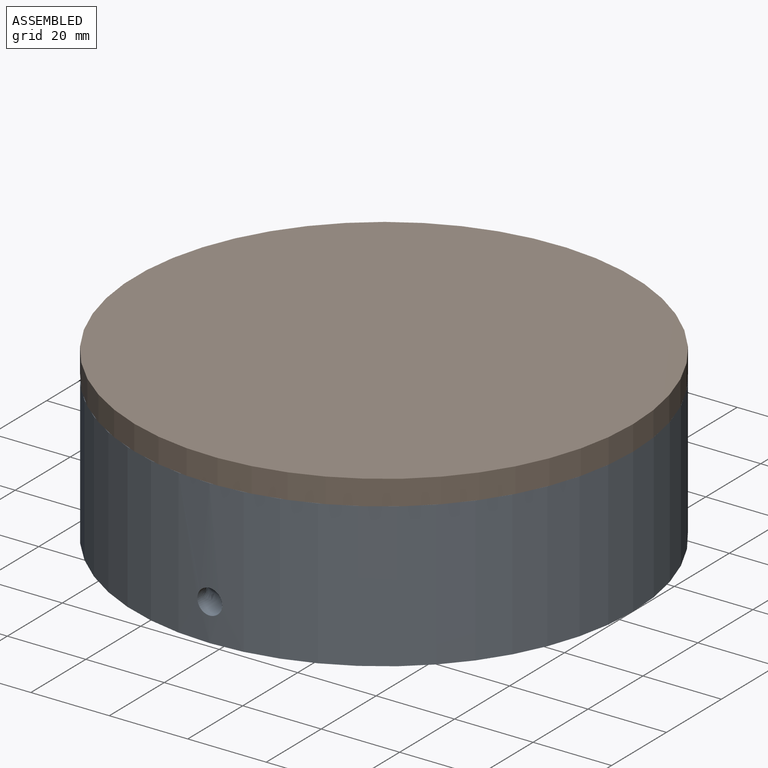
[diagram: assembled view]
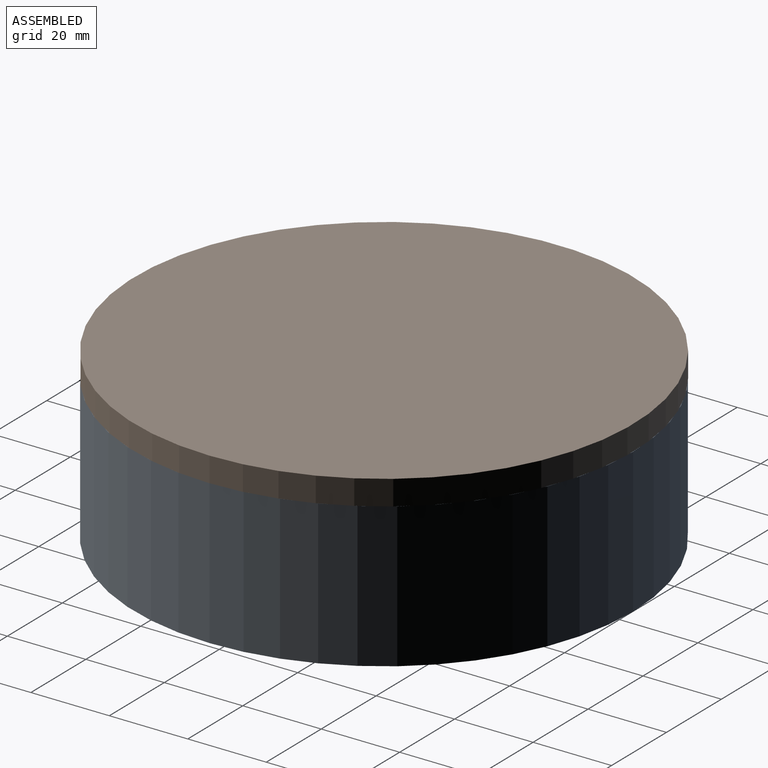
[diagram: assembled view, second angle]
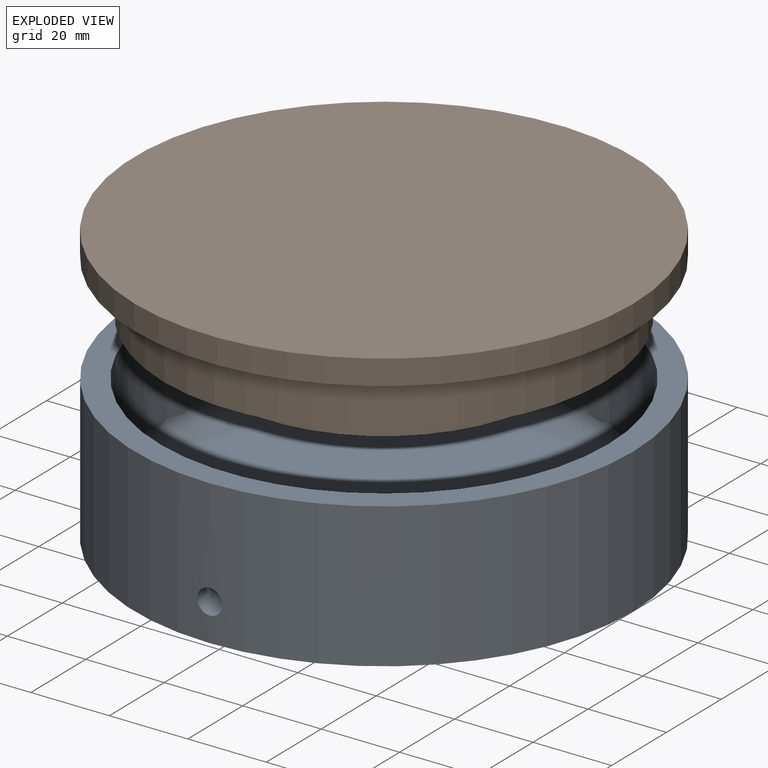
[diagram: exploded view]
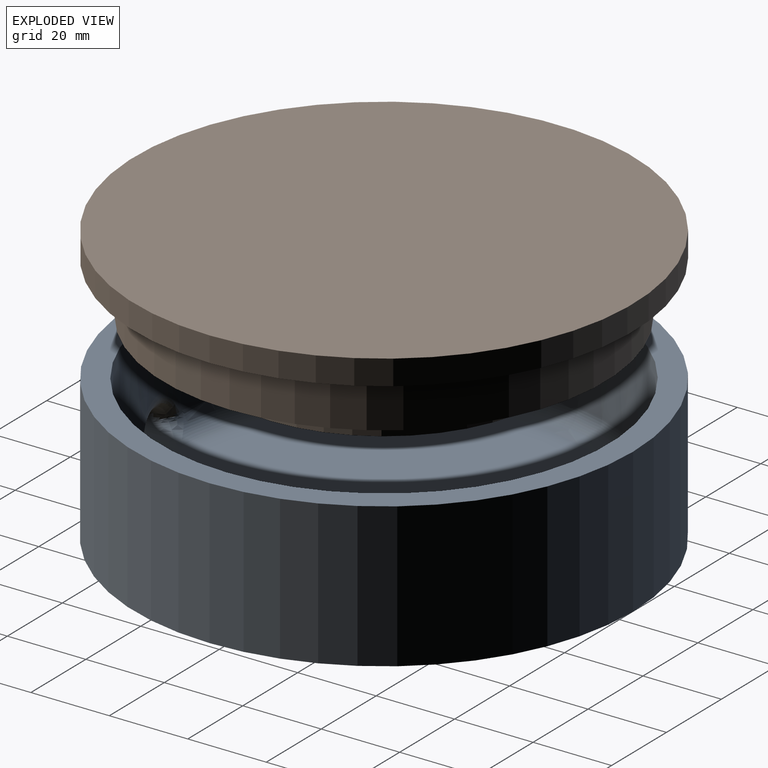
[diagram: exploded view, second angle]
ASSEMBLY  parts=2 mates=2
PART A: 10 faces, bbox 127x127x36.8 mm
  f0: cylinder r=63.5mm len=127mm, axis (0,0,-1), area 14662.8mm2, adj f3,f4,f6
  f1: cylinder r=57.15mm len=114.3mm, axis (0,0,1), area 9051mm2, adj f2,f3,f8
  f2: torus R=52.07mm, axis (0,0,1), area 2689.7mm2, adj f1,f5,f7,f9
  f3: plane 127x127mm, normal (0,0,1), area 2406.9mm2, adj f0,f1
  f4: plane 127x127mm, normal (0,0,-1), area 12667.7mm2, adj f0
  f5: plane 104.14x104.14mm, normal (0,0,1), area 8517.8mm2, adj f2
  f6: cylinder r=3.17mm len=11.43mm, axis (0,1,0), area 72.4mm2, adj f0,f7,f8,f9
  f7: bspline ~9.65x7.6mm, area 39.2mm2, adj f2,f6,f8
  f8: bspline ~15.19x8.23mm, area 99.8mm2, adj f1,f6,f7,f9
  f9: bspline ~9.65x7.6mm, area 39.2mm2, adj f2,f6,f8
PART B: 7 faces, bbox 127x127x28.4 mm
  f0: cylinder r=63.5mm len=127mm, axis (0,0,1), area 2533.5mm2, adj f1,f2
  f1: plane 127x127mm, normal (0,0,-1), area 2723.6mm2, adj f0,f3
  f2: plane 127x127mm, normal (0,0,1), area 12667.7mm2, adj f0
  f3: cylinder r=56.26mm len=112.52mm, axis (0,0,1), area 4788.4mm2, adj f1,f4
  f4: plane 112.52x112.52mm, normal (0,0,-1), area 4657.7mm2, adj f3,f5
  f5: cylinder r=41.02mm len=82.04mm, axis (0,0,1), area 2182.2mm2, adj f4,f6
  f6: plane 82.04x82.04mm, normal (0,0,-1), area 5286.4mm2, adj f5
PLACE A at identity fixed
PLACE B t=(0,0,43.18)mm
MATE slider B.f3 <-> A.f1  axis (0,0,1) through (0,0,30.06)mm
MATE planar B.f0 <-> A.f0  axis (0,0,-1) through (0,0,36.83)mm
